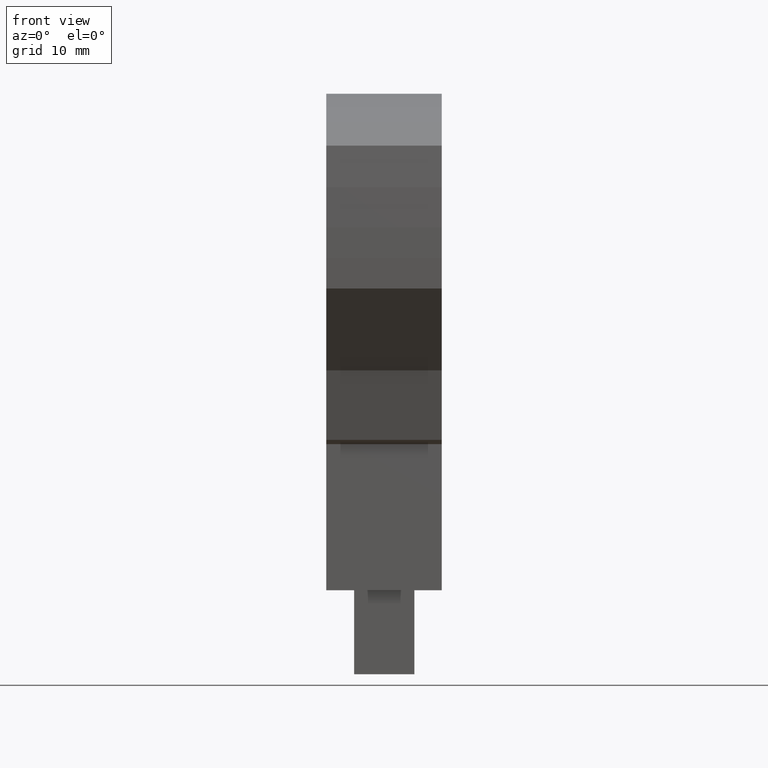
[diagram: clean part render]
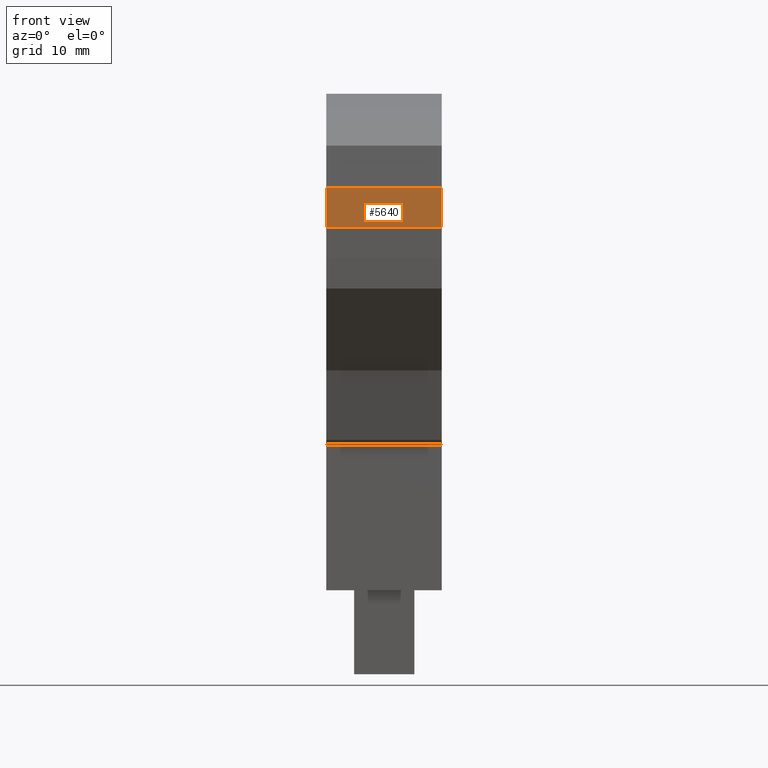
[diagram: same view with one face highlighted and labeled with its STEP entity id]
A machine part, front view. The second image highlights one B-rep face of the part: STEP entity #5640.
In plain terms, the highlighted planar face has unit normal (0, -0.9998, 0.021).
Its self-contained STEP definition (entity closure, byte-faithful):
#1320=CARTESIAN_POINT('',(24.1936064860476,31.8076483953254,
53.5700000001206));
#1330=VERTEX_POINT('',#1320);
#1360=CARTESIAN_POINT('',(24.1936064860476,31.8076483953255,
53.5700000001206));
#1370=DIRECTION('',(0.0210429014288442,-0.999778573634911,-0.));
#1380=VECTOR('',#1370,1.);
#1390=LINE('',#1360,#1380);
#1400=CARTESIAN_POINT('',(24.2821672261611,27.5999999999697,
53.5700000001206));
#1410=VERTEX_POINT('',#1400);
#1420=EDGE_CURVE('',#1330,#1410,#1390,.T.);
#5200=CARTESIAN_POINT('',(24.1936064860476,31.8076483953254,
41.4700000001206));
#5210=VERTEX_POINT('',#5200);
#5240=CARTESIAN_POINT('',(24.1936064860476,31.8076483953255,
53.5950000001206));
#5250=DIRECTION('',(0.,0.,-1.));
#5260=VECTOR('',#5250,1.);
#5270=LINE('',#5240,#5260);
#5280=EDGE_CURVE('',#1330,#5210,#5270,.T.);
#5410=CARTESIAN_POINT('',(24.2821672261611,27.5999999999697,
53.5950000001206));
#5420=DIRECTION('',(0.999778573634911,0.0210429014288442,0.));
#5430=DIRECTION('',(0.0210429014288442,-0.999778573634911,-0.));
#5440=AXIS2_PLACEMENT_3D('',#5410,#5420,#5430);
#5450=PLANE('',#5440);
#5460=ORIENTED_EDGE('',*,*,#5280,.F.);
#5470=CARTESIAN_POINT('',(24.1936064860476,31.8076483953255,
41.4700000001206));
#5480=DIRECTION('',(0.0210429014288442,-0.999778573634911,-0.));
#5490=VECTOR('',#5480,1.);
#5500=LINE('',#5470,#5490);
#5510=CARTESIAN_POINT('',(24.2821672261611,27.5999999999697,
41.4700000001206));
#5520=VERTEX_POINT('',#5510);
#5530=EDGE_CURVE('',#5210,#5520,#5500,.T.);
#5540=ORIENTED_EDGE('',*,*,#5530,.F.);
#5550=CARTESIAN_POINT('',(24.2821672261611,27.5999999999697,
53.5950000001206));
#5560=DIRECTION('',(0.,0.,-1.));
#5570=VECTOR('',#5560,1.);
#5580=LINE('',#5550,#5570);
#5590=EDGE_CURVE('',#1410,#5520,#5580,.T.);
#5600=ORIENTED_EDGE('',*,*,#5590,.T.);
#5610=ORIENTED_EDGE('',*,*,#1420,.T.);
#5620=EDGE_LOOP('',(#5610,#5600,#5540,#5460));
#5630=FACE_OUTER_BOUND('',#5620,.T.);
#5640=ADVANCED_FACE('',(#5630),#5450,.T.);